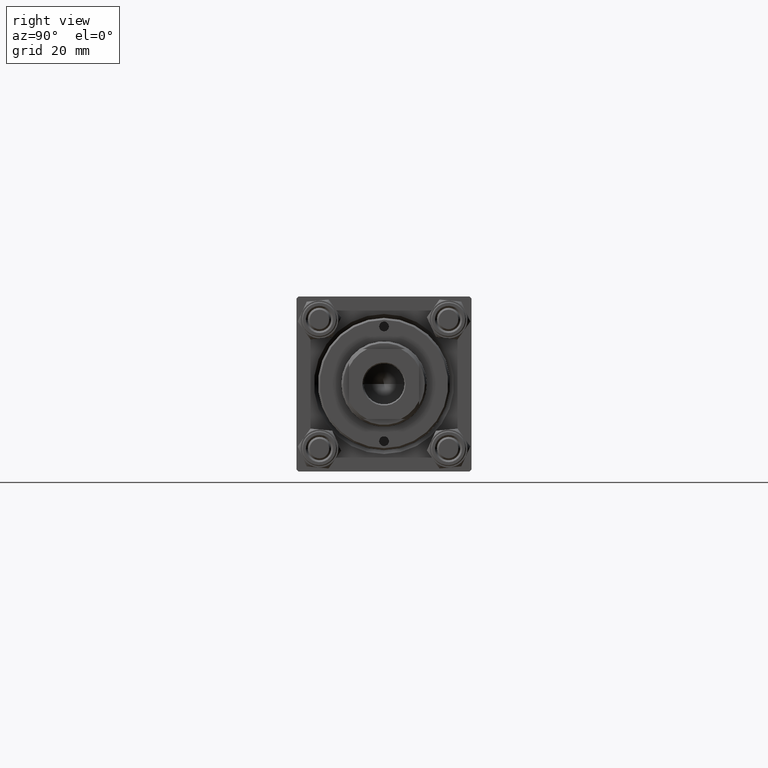
[diagram: clean part render]
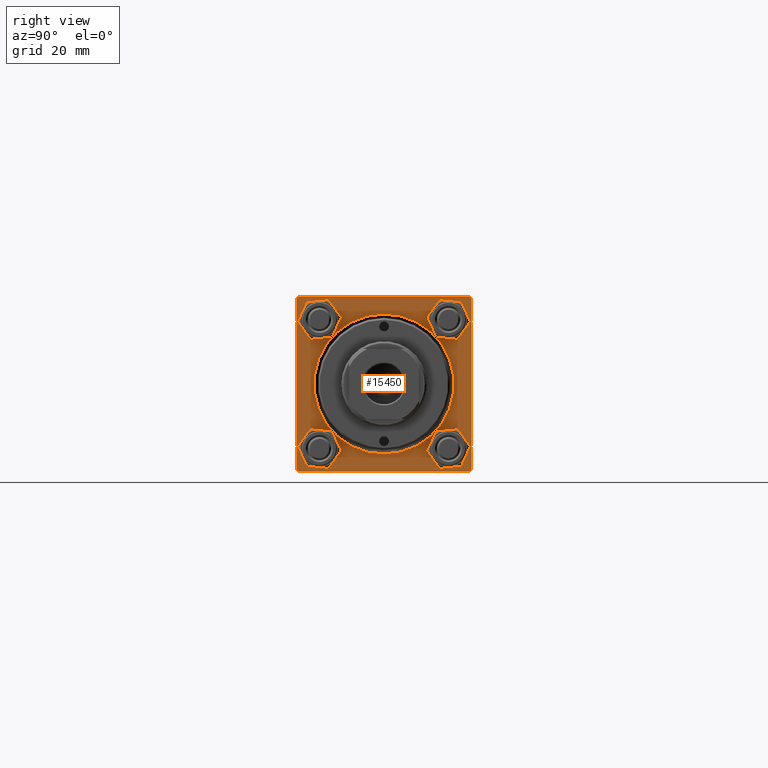
[diagram: same view with one face highlighted and labeled with its STEP entity id]
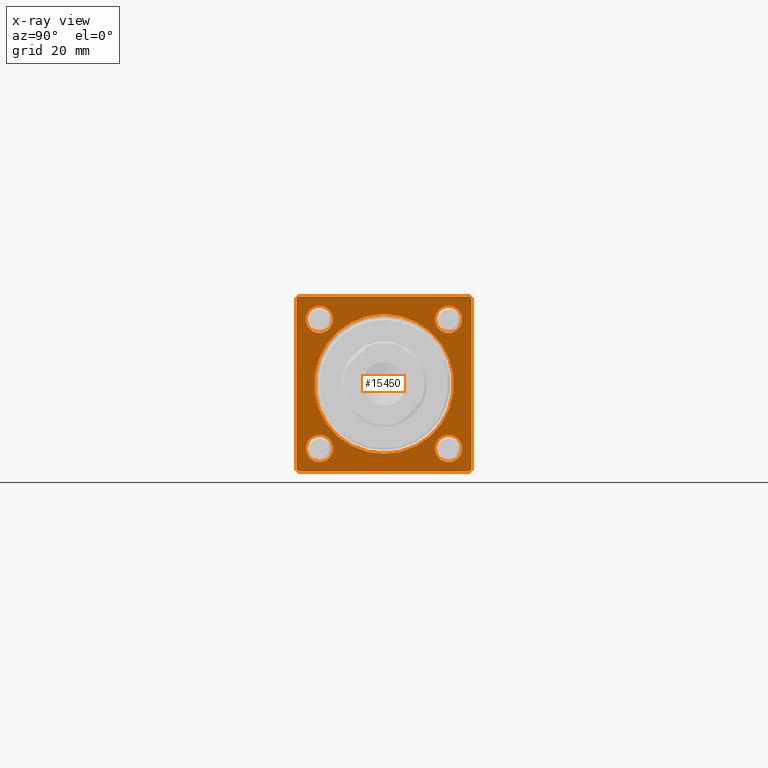
[diagram: x-ray of the same camera — body ghosted, the highlighted face saturated]
A machine part, right view. The second image highlights one B-rep face of the part: STEP entity #15450.
The next image is the same camera in x-ray: the body ghosted, the highlighted face saturated — about 0% of this face is hidden behind the body in this view.
In plain terms, the highlighted planar face has unit normal (-1, 0, 0).
Its self-contained STEP definition (entity closure, byte-faithful):
#139 = CARTESIAN_POINT ( 'NONE',  ( 128.0000000000000000, 0.000000000000000000, -18.00000000000004263 ) ) ;
#417 = EDGE_CURVE ( 'NONE', #27472, #30074, #26744, .T. ) ;
#614 = CARTESIAN_POINT ( 'NONE',  ( 128.0000000000000000, -16.59999999999999076, -16.60000000000000853 ) ) ;
#1170 = FACE_OUTER_BOUND ( 'NONE', #7062, .T. ) ;
#1423 = CARTESIAN_POINT ( 'NONE',  ( 128.0000000000000000, 21.99999999999997513, -22.49999999999999645 ) ) ;
#1824 = EDGE_CURVE ( 'NONE', #25640, #10469, #15458, .T. ) ;
#2074 = EDGE_CURVE ( 'NONE', #10469, #25640, #47791, .T. ) ;
#2286 = DIRECTION ( 'NONE',  ( 0.000000000000000000, 0.000000000000000000, -1.000000000000000000 ) ) ;
#2462 = CARTESIAN_POINT ( 'NONE',  ( 128.0000000000000000, -22.49999999999999645, 21.99999999999996447 ) ) ;
#3464 = DIRECTION ( 'NONE',  ( 0.000000000000000000, 0.000000000000000000, 1.000000000000000000 ) ) ;
#4267 = VERTEX_POINT ( 'NONE', #28299 ) ;
#4400 = CARTESIAN_POINT ( 'NONE',  ( 128.0000000000000000, 16.59999999999999787, 16.60000000000000497 ) ) ;
#4455 = FACE_BOUND ( 'NONE', #35374, .T. ) ;
#4492 = AXIS2_PLACEMENT_3D ( 'NONE', #47279, #13347, #44219 ) ;
#4933 = VECTOR ( 'NONE', #32484, 1000.000000000000000 ) ;
#5149 = AXIS2_PLACEMENT_3D ( 'NONE', #46241, #49798, #27024 ) ;
#6026 = ORIENTED_EDGE ( 'NONE', *, *, #43797, .T. ) ;
#6263 = DIRECTION ( 'NONE',  ( -0.000000000000000000, -0.7071067811865474617, -0.7071067811865474617 ) ) ;
#6390 = EDGE_CURVE ( 'NONE', #27633, #27153, #6844, .T. ) ;
#6597 = VERTEX_POINT ( 'NONE', #1423 ) ;
#6844 = CIRCLE ( 'NONE', #24636, 3.500000000000044853 ) ;
#7062 = EDGE_LOOP ( 'NONE', ( #15792, #40468, #42762, #6026, #13230, #33268, #33965, #20044 ) ) ;
#7121 = CARTESIAN_POINT ( 'NONE',  ( 128.0000000000000000, 2.204364238465241344E-15, 18.00000000000004263 ) ) ;
#7355 = AXIS2_PLACEMENT_3D ( 'NONE', #30749, #33794, #49983 ) ;
#7541 = VERTEX_POINT ( 'NONE', #43551 ) ;
#7880 = DIRECTION ( 'NONE',  ( 0.000000000000000000, 0.000000000000000000, 1.000000000000000000 ) ) ;
#8087 = CARTESIAN_POINT ( 'NONE',  ( 128.0000000000000000, -21.99999999999998224, -22.50000000000000000 ) ) ;
#8763 = CARTESIAN_POINT ( 'NONE',  ( 128.0000000000000000, -16.59999999999999076, 20.10000000000005116 ) ) ;
#8929 = EDGE_CURVE ( 'NONE', #33912, #9189, #48531, .T. ) ;
#9189 = VERTEX_POINT ( 'NONE', #18343 ) ;
#10180 = EDGE_CURVE ( 'NONE', #7541, #42017, #27343, .T. ) ;
#10469 = VERTEX_POINT ( 'NONE', #40161 ) ;
#10478 = CARTESIAN_POINT ( 'NONE',  ( 128.0000000000000000, 16.59999999999999787, 13.09999999999995879 ) ) ;
#11234 = ORIENTED_EDGE ( 'NONE', *, *, #21599, .T. ) ;
#11752 = VECTOR ( 'NONE', #28181, 1000.000000000000114 ) ;
#12263 = CARTESIAN_POINT ( 'NONE',  ( 128.0000000000000000, -22.49999999999999645, 22.49999999999999289 ) ) ;
#12404 = CARTESIAN_POINT ( 'NONE',  ( 128.0000000000000000, 21.99999999999998934, 22.50000000000000355 ) ) ;
#12581 = EDGE_CURVE ( 'NONE', #22727, #16296, #45322, .T. ) ;
#12897 = EDGE_CURVE ( 'NONE', #6597, #42017, #48413, .T. ) ;
#13230 = ORIENTED_EDGE ( 'NONE', *, *, #34714, .F. ) ;
#13347 = DIRECTION ( 'NONE',  ( -1.000000000000000000, 0.000000000000000000, -0.000000000000000000 ) ) ;
#13694 = EDGE_LOOP ( 'NONE', ( #13942, #41570 ) ) ;
#13942 = ORIENTED_EDGE ( 'NONE', *, *, #417, .T. ) ;
#13963 = AXIS2_PLACEMENT_3D ( 'NONE', #4400, #46675, #19339 ) ;
#14032 = AXIS2_PLACEMENT_3D ( 'NONE', #15876, #42952, #34104 ) ;
#14953 = AXIS2_PLACEMENT_3D ( 'NONE', #46355, #27132, #7880 ) ;
#15450 = ADVANCED_FACE ( 'NONE', ( #38881, #4455, #38638, #39133, #35841, #1170 ), #28008, .F. ) ;
#15458 = CIRCLE ( 'NONE', #26817, 3.500000000000044853 ) ;
#15792 = ORIENTED_EDGE ( 'NONE', *, *, #35137, .T. ) ;
#15852 = CARTESIAN_POINT ( 'NONE',  ( 128.0000000000000000, 0.000000000000000000, 0.000000000000000000 ) ) ;
#15876 = CARTESIAN_POINT ( 'NONE',  ( 128.0000000000000000, -16.59999999999999076, 16.60000000000000853 ) ) ;
#16163 = VECTOR ( 'NONE', #27842, 1000.000000000000000 ) ;
#16296 = VERTEX_POINT ( 'NONE', #8763 ) ;
#16373 = EDGE_LOOP ( 'NONE', ( #39403, #27760 ) ) ;
#16711 = EDGE_CURVE ( 'NONE', #42948, #24972, #32570, .T. ) ;
#16771 = CARTESIAN_POINT ( 'NONE',  ( 128.0000000000000000, 21.99999999999998934, 22.50000000000000355 ) ) ;
#16841 = VECTOR ( 'NONE', #2286, 1000.000000000000000 ) ;
#17784 = CARTESIAN_POINT ( 'NONE',  ( 128.0000000000000000, 22.50000000000000355, -22.49999999999999645 ) ) ;
#17841 = ORIENTED_EDGE ( 'NONE', *, *, #47701, .T. ) ;
#18343 = CARTESIAN_POINT ( 'NONE',  ( 128.0000000000000000, -22.49999999999999645, 21.99999999999996447 ) ) ;
#18454 = CARTESIAN_POINT ( 'NONE',  ( 128.0000000000000000, 0.000000000000000000, 0.000000000000000000 ) ) ;
#19339 = DIRECTION ( 'NONE',  ( 0.000000000000000000, 0.000000000000000000, 1.000000000000000000 ) ) ;
#20023 = DIRECTION ( 'NONE',  ( 0.000000000000000000, 0.000000000000000000, 1.000000000000000000 ) ) ;
#20044 = ORIENTED_EDGE ( 'NONE', *, *, #8929, .T. ) ;
#20216 = ORIENTED_EDGE ( 'NONE', *, *, #2074, .T. ) ;
#20330 = EDGE_CURVE ( 'NONE', #44436, #33912, #25242, .T. ) ;
#20335 = AXIS2_PLACEMENT_3D ( 'NONE', #23569, #27889, #20023 ) ;
#20597 = CIRCLE ( 'NONE', #14953, 3.500000000000044853 ) ;
#20611 = DIRECTION ( 'NONE',  ( 0.000000000000000000, 0.000000000000000000, -1.000000000000000000 ) ) ;
#20859 = CARTESIAN_POINT ( 'NONE',  ( 128.0000000000000000, 22.50000000000000355, -21.99999999999996803 ) ) ;
#21531 = LINE ( 'NONE', #36974, #16841 ) ;
#21599 = EDGE_CURVE ( 'NONE', #24972, #42948, #35862, .T. ) ;
#22210 = EDGE_CURVE ( 'NONE', #16296, #22727, #34228, .T. ) ;
#22727 = VERTEX_POINT ( 'NONE', #33987 ) ;
#22942 = VECTOR ( 'NONE', #32010, 1000.000000000000114 ) ;
#23102 = CARTESIAN_POINT ( 'NONE',  ( 128.0000000000000000, 22.50000000000000355, 21.99999999999998934 ) ) ;
#23205 = DIRECTION ( 'NONE',  ( -0.000000000000000000, 0.000000000000000000, 1.000000000000000000 ) ) ;
#23317 = VECTOR ( 'NONE', #20611, 1000.000000000000000 ) ;
#23569 = CARTESIAN_POINT ( 'NONE',  ( 128.0000000000000000, -16.59999999999999076, -16.60000000000000853 ) ) ;
#24289 = ORIENTED_EDGE ( 'NONE', *, *, #1824, .T. ) ;
#24636 = AXIS2_PLACEMENT_3D ( 'NONE', #48786, #26268, #3464 ) ;
#24863 = ORIENTED_EDGE ( 'NONE', *, *, #16711, .T. ) ;
#24972 = VERTEX_POINT ( 'NONE', #10478 ) ;
#25242 = LINE ( 'NONE', #41683, #31852 ) ;
#25640 = VERTEX_POINT ( 'NONE', #27547 ) ;
#25887 = EDGE_CURVE ( 'NONE', #30074, #27472, #32752, .T. ) ;
#26268 = DIRECTION ( 'NONE',  ( -1.000000000000000000, 0.000000000000000000, -0.000000000000000000 ) ) ;
#26744 = CIRCLE ( 'NONE', #32477, 18.00000000000004263 ) ;
#26817 = AXIS2_PLACEMENT_3D ( 'NONE', #614, #27694, #39341 ) ;
#27008 = DIRECTION ( 'NONE',  ( -1.000000000000000000, 0.000000000000000000, -0.000000000000000000 ) ) ;
#27024 = DIRECTION ( 'NONE',  ( 0.000000000000000000, 0.000000000000000000, 1.000000000000000000 ) ) ;
#27132 = DIRECTION ( 'NONE',  ( -1.000000000000000000, 0.000000000000000000, -0.000000000000000000 ) ) ;
#27153 = VERTEX_POINT ( 'NONE', #46506 ) ;
#27343 = LINE ( 'NONE', #8087, #16163 ) ;
#27472 = VERTEX_POINT ( 'NONE', #139 ) ;
#27547 = CARTESIAN_POINT ( 'NONE',  ( 128.0000000000000000, -16.59999999999999076, -13.09999999999996234 ) ) ;
#27633 = VERTEX_POINT ( 'NONE', #36056 ) ;
#27694 = DIRECTION ( 'NONE',  ( -1.000000000000000000, 0.000000000000000000, -0.000000000000000000 ) ) ;
#27760 = ORIENTED_EDGE ( 'NONE', *, *, #22210, .T. ) ;
#27842 = DIRECTION ( 'NONE',  ( 0.000000000000000000, 0.7071067811865426878, -0.7071067811865524577 ) ) ;
#27889 = DIRECTION ( 'NONE',  ( -1.000000000000000000, 0.000000000000000000, -0.000000000000000000 ) ) ;
#28008 = PLANE ( 'NONE',  #43015 ) ;
#28181 = DIRECTION ( 'NONE',  ( 0.000000000000000000, -0.7071067811865474617, 0.7071067811865474617 ) ) ;
#28299 = CARTESIAN_POINT ( 'NONE',  ( 128.0000000000000000, 22.50000000000000355, -21.99999999999995381 ) ) ;
#29788 = DIRECTION ( 'NONE',  ( 0.000000000000000000, -1.000000000000000000, -2.312964634635742957E-16 ) ) ;
#30074 = VERTEX_POINT ( 'NONE', #7121 ) ;
#30749 = CARTESIAN_POINT ( 'NONE',  ( 128.0000000000000000, -16.59999999999999076, 16.60000000000000853 ) ) ;
#31464 = LINE ( 'NONE', #16771, #11752 ) ;
#31852 = VECTOR ( 'NONE', #29788, 1000.000000000000000 ) ;
#32010 = DIRECTION ( 'NONE',  ( -0.000000000000000000, 0.7071067811865474617, 0.7071067811865474617 ) ) ;
#32477 = AXIS2_PLACEMENT_3D ( 'NONE', #18454, #34408, #46041 ) ;
#32484 = DIRECTION ( 'NONE',  ( 0.000000000000000000, -1.000000000000000000, -7.709882115452476934E-17 ) ) ;
#32570 = CIRCLE ( 'NONE', #13963, 3.500000000000044853 ) ;
#32735 = CARTESIAN_POINT ( 'NONE',  ( 128.0000000000000000, 16.59999999999999787, 20.10000000000004761 ) ) ;
#32752 = CIRCLE ( 'NONE', #4492, 18.00000000000004263 ) ;
#33161 = CARTESIAN_POINT ( 'NONE',  ( 128.0000000000000000, -21.99999999999995381, 22.49999999999999289 ) ) ;
#33268 = ORIENTED_EDGE ( 'NONE', *, *, #48992, .T. ) ;
#33440 = EDGE_LOOP ( 'NONE', ( #11234, #24863 ) ) ;
#33794 = DIRECTION ( 'NONE',  ( -1.000000000000000000, 0.000000000000000000, -0.000000000000000000 ) ) ;
#33912 = VERTEX_POINT ( 'NONE', #33161 ) ;
#33965 = ORIENTED_EDGE ( 'NONE', *, *, #20330, .T. ) ;
#33987 = CARTESIAN_POINT ( 'NONE',  ( 128.0000000000000000, -16.59999999999999076, 13.09999999999996234 ) ) ;
#34104 = DIRECTION ( 'NONE',  ( 0.000000000000000000, 0.000000000000000000, 1.000000000000000000 ) ) ;
#34228 = CIRCLE ( 'NONE', #14032, 3.500000000000044853 ) ;
#34408 = DIRECTION ( 'NONE',  ( -1.000000000000000000, 0.000000000000000000, -0.000000000000000000 ) ) ;
#34714 = EDGE_CURVE ( 'NONE', #43129, #4267, #21531, .T. ) ;
#35137 = EDGE_CURVE ( 'NONE', #9189, #7541, #35798, .T. ) ;
#35374 = EDGE_LOOP ( 'NONE', ( #17841, #44256 ) ) ;
#35798 = LINE ( 'NONE', #12263, #23317 ) ;
#35841 = FACE_BOUND ( 'NONE', #13694, .T. ) ;
#35862 = CIRCLE ( 'NONE', #5149, 3.500000000000044853 ) ;
#36056 = CARTESIAN_POINT ( 'NONE',  ( 128.0000000000000000, 16.59999999999999787, -13.09999999999995879 ) ) ;
#36974 = CARTESIAN_POINT ( 'NONE',  ( 128.0000000000000000, 22.50000000000000355, 22.50000000000000355 ) ) ;
#37950 = VECTOR ( 'NONE', #6263, 1000.000000000000114 ) ;
#38638 = FACE_BOUND ( 'NONE', #33440, .T. ) ;
#38881 = FACE_BOUND ( 'NONE', #43869, .T. ) ;
#39133 = FACE_BOUND ( 'NONE', #16373, .T. ) ;
#39341 = DIRECTION ( 'NONE',  ( 0.000000000000000000, 0.000000000000000000, 1.000000000000000000 ) ) ;
#39403 = ORIENTED_EDGE ( 'NONE', *, *, #12581, .T. ) ;
#39856 = LINE ( 'NONE', #20859, #22942 ) ;
#39928 = CARTESIAN_POINT ( 'NONE',  ( 128.0000000000000000, -21.99999999999996803, -22.50000000000000000 ) ) ;
#40161 = CARTESIAN_POINT ( 'NONE',  ( 128.0000000000000000, -16.59999999999999076, -20.10000000000005116 ) ) ;
#40468 = ORIENTED_EDGE ( 'NONE', *, *, #10180, .T. ) ;
#41570 = ORIENTED_EDGE ( 'NONE', *, *, #25887, .T. ) ;
#41683 = CARTESIAN_POINT ( 'NONE',  ( 128.0000000000000000, 22.50000000000000355, 22.50000000000000355 ) ) ;
#42017 = VERTEX_POINT ( 'NONE', #39928 ) ;
#42762 = ORIENTED_EDGE ( 'NONE', *, *, #12897, .F. ) ;
#42948 = VERTEX_POINT ( 'NONE', #32735 ) ;
#42952 = DIRECTION ( 'NONE',  ( -1.000000000000000000, 0.000000000000000000, -0.000000000000000000 ) ) ;
#43015 = AXIS2_PLACEMENT_3D ( 'NONE', #15852, #27008, #23205 ) ;
#43129 = VERTEX_POINT ( 'NONE', #23102 ) ;
#43551 = CARTESIAN_POINT ( 'NONE',  ( 128.0000000000000000, -22.49999999999999645, -21.99999999999996447 ) ) ;
#43797 = EDGE_CURVE ( 'NONE', #6597, #4267, #39856, .T. ) ;
#43869 = EDGE_LOOP ( 'NONE', ( #20216, #24289 ) ) ;
#44219 = DIRECTION ( 'NONE',  ( 0.000000000000000000, 0.000000000000000000, 1.000000000000000000 ) ) ;
#44256 = ORIENTED_EDGE ( 'NONE', *, *, #6390, .T. ) ;
#44436 = VERTEX_POINT ( 'NONE', #12404 ) ;
#45322 = CIRCLE ( 'NONE', #7355, 3.500000000000044853 ) ;
#46041 = DIRECTION ( 'NONE',  ( 0.000000000000000000, 0.000000000000000000, 1.000000000000000000 ) ) ;
#46241 = CARTESIAN_POINT ( 'NONE',  ( 128.0000000000000000, 16.59999999999999787, 16.60000000000000497 ) ) ;
#46355 = CARTESIAN_POINT ( 'NONE',  ( 128.0000000000000000, 16.59999999999999787, -16.60000000000000497 ) ) ;
#46506 = CARTESIAN_POINT ( 'NONE',  ( 128.0000000000000000, 16.59999999999999787, -20.10000000000004761 ) ) ;
#46675 = DIRECTION ( 'NONE',  ( -1.000000000000000000, 0.000000000000000000, -0.000000000000000000 ) ) ;
#47279 = CARTESIAN_POINT ( 'NONE',  ( 128.0000000000000000, 0.000000000000000000, 0.000000000000000000 ) ) ;
#47701 = EDGE_CURVE ( 'NONE', #27153, #27633, #20597, .T. ) ;
#47791 = CIRCLE ( 'NONE', #20335, 3.500000000000044853 ) ;
#48413 = LINE ( 'NONE', #17784, #4933 ) ;
#48531 = LINE ( 'NONE', #2462, #37950 ) ;
#48786 = CARTESIAN_POINT ( 'NONE',  ( 128.0000000000000000, 16.59999999999999787, -16.60000000000000497 ) ) ;
#48992 = EDGE_CURVE ( 'NONE', #43129, #44436, #31464, .T. ) ;
#49798 = DIRECTION ( 'NONE',  ( -1.000000000000000000, 0.000000000000000000, -0.000000000000000000 ) ) ;
#49983 = DIRECTION ( 'NONE',  ( 0.000000000000000000, 0.000000000000000000, 1.000000000000000000 ) ) ;